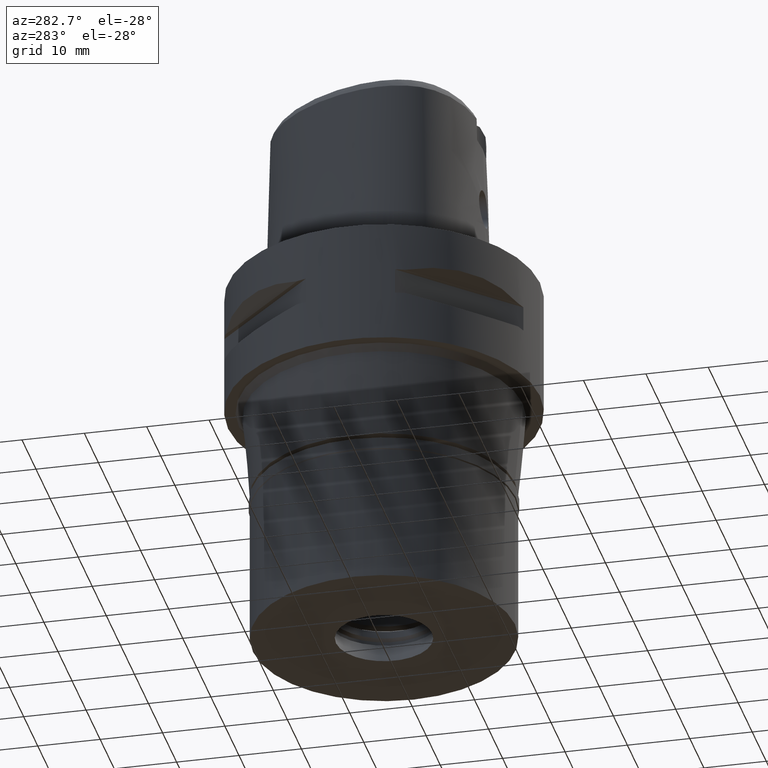
[diagram: clean part render]
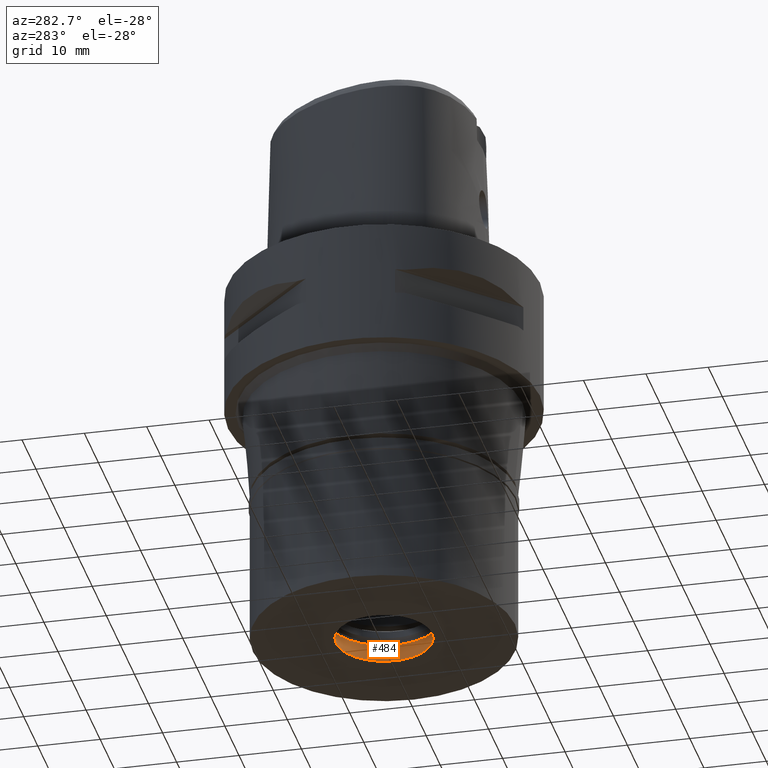
[diagram: same view with one face highlighted and labeled with its STEP entity id]
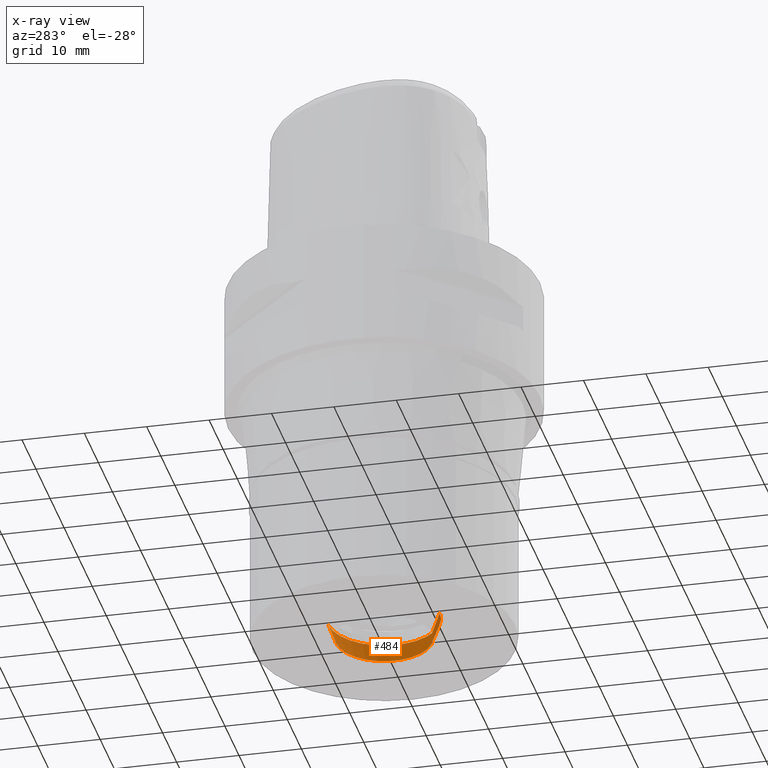
[diagram: x-ray of the same camera — body ghosted, the highlighted face saturated]
A machine part, auxiliary view. The second image highlights one B-rep face of the part: STEP entity #484.
The next image is the same camera in x-ray: the body ghosted, the highlighted face saturated — about 0% of this face is hidden behind the body in this view.
In plain terms, the highlighted conical surface has half-angle 20 deg.
Its self-contained STEP definition (entity closure, byte-faithful):
#149 = ORIENTED_EDGE ( 'NONE', *, *, #2023, .T. ) ;
#281 = CONICAL_SURFACE ( 'NONE', #3302, 8.325000000000001066, 0.3490658503987996708 ) ;
#364 = EDGE_CURVE ( 'NONE', #952, #2260, #2755, .T. ) ;
#484 = ADVANCED_FACE ( 'NONE', ( #2438 ), #281, .F. ) ;
#621 = DIRECTION ( 'NONE',  ( 0.0000000000000000000, 0.0000000000000000000, 1.000000000000000000 ) ) ;
#694 = CARTESIAN_POINT ( 'NONE',  ( 0.0000000000000000000, -8.949999999999999289, -20.86565322567999914 ) ) ;
#752 = LINE ( 'NONE', #4770, #4373 ) ;
#952 = VERTEX_POINT ( 'NONE', #3326 ) ;
#1343 = DIRECTION ( 'NONE',  ( 0.0000000000000000000, 1.000000000000000000, 0.0000000000000000000 ) ) ;
#1370 = CARTESIAN_POINT ( 'NONE',  ( 0.0000000000000000000, 0.0000000000000000000, -22.58282661284000170 ) ) ;
#1465 = CARTESIAN_POINT ( 'NONE',  ( 0.0000000000000000000, -7.700000000000000178, -24.29999999999999716 ) ) ;
#1467 = EDGE_CURVE ( 'NONE', #2260, #4267, #4521, .T. ) ;
#1672 = CARTESIAN_POINT ( 'NONE',  ( 0.0000000000000000000, 8.949999999999999289, -20.86565322567999914 ) ) ;
#1968 = EDGE_CURVE ( 'NONE', #4678, #4267, #752, .T. ) ;
#2023 = EDGE_CURVE ( 'NONE', #952, #4678, #2618, .T. ) ;
#2260 = VERTEX_POINT ( 'NONE', #1672 ) ;
#2323 = CARTESIAN_POINT ( 'NONE',  ( 0.0000000000000000000, 7.700000000000000178, -24.29999999999999716 ) ) ;
#2394 = DIRECTION ( 'NONE',  ( 0.0000000000000000000, 0.3420201433256107038, 0.9396926207859295221 ) ) ;
#2410 = EDGE_LOOP ( 'NONE', ( #149, #3681, #4761, #4597 ) ) ;
#2438 = FACE_OUTER_BOUND ( 'NONE', #2410, .T. ) ;
#2490 = DIRECTION ( 'NONE',  ( 0.0000000000000000000, 1.000000000000000000, 0.0000000000000000000 ) ) ;
#2552 = DIRECTION ( 'NONE',  ( 0.0000000000000000000, 0.0000000000000000000, -1.000000000000000000 ) ) ;
#2574 = CARTESIAN_POINT ( 'NONE',  ( 0.0000000000000000000, 0.0000000000000000000, -24.29999999999999716 ) ) ;
#2618 = CIRCLE ( 'NONE', #4604, 7.700000000000000178 ) ;
#2755 = LINE ( 'NONE', #2323, #3989 ) ;
#3302 = AXIS2_PLACEMENT_3D ( 'NONE', #1370, #621, #2490 ) ;
#3326 = CARTESIAN_POINT ( 'NONE',  ( 0.0000000000000000000, 7.700000000000000178, -24.29999999999999716 ) ) ;
#3386 = CARTESIAN_POINT ( 'NONE',  ( 0.0000000000000000000, 0.0000000000000000000, -20.86565322567999914 ) ) ;
#3681 = ORIENTED_EDGE ( 'NONE', *, *, #1968, .T. ) ;
#3728 = DIRECTION ( 'NONE',  ( 0.0000000000000000000, 1.000000000000000000, 0.0000000000000000000 ) ) ;
#3989 = VECTOR ( 'NONE', #2394, 1000.000000000000114 ) ;
#3995 = AXIS2_PLACEMENT_3D ( 'NONE', #3386, #4056, #3728 ) ;
#4056 = DIRECTION ( 'NONE',  ( 0.0000000000000000000, 0.0000000000000000000, -1.000000000000000000 ) ) ;
#4060 = DIRECTION ( 'NONE',  ( 0.0000000000000000000, -0.3420201433256107038, 0.9396926207859295221 ) ) ;
#4267 = VERTEX_POINT ( 'NONE', #694 ) ;
#4373 = VECTOR ( 'NONE', #4060, 1000.000000000000114 ) ;
#4521 = CIRCLE ( 'NONE', #3995, 8.949999999999999289 ) ;
#4597 = ORIENTED_EDGE ( 'NONE', *, *, #364, .F. ) ;
#4604 = AXIS2_PLACEMENT_3D ( 'NONE', #2574, #2552, #1343 ) ;
#4678 = VERTEX_POINT ( 'NONE', #1465 ) ;
#4761 = ORIENTED_EDGE ( 'NONE', *, *, #1467, .F. ) ;
#4770 = CARTESIAN_POINT ( 'NONE',  ( 0.0000000000000000000, -7.700000000000000178, -24.29999999999999716 ) ) ;